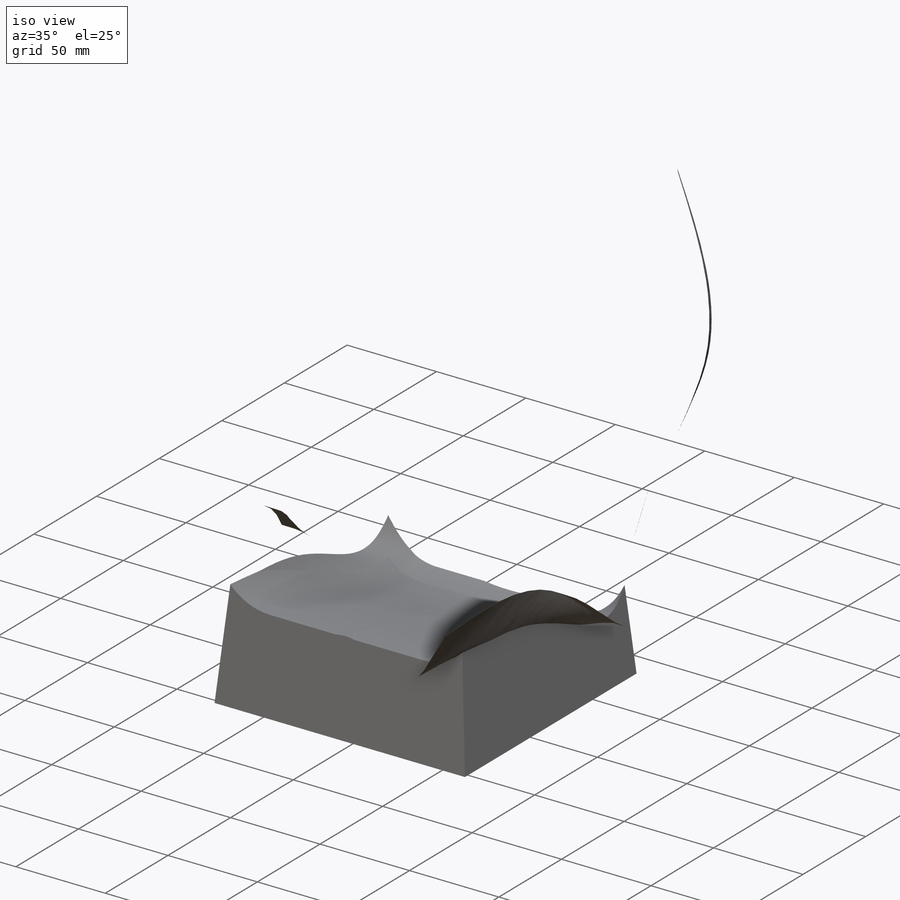
[diagram: iso view]
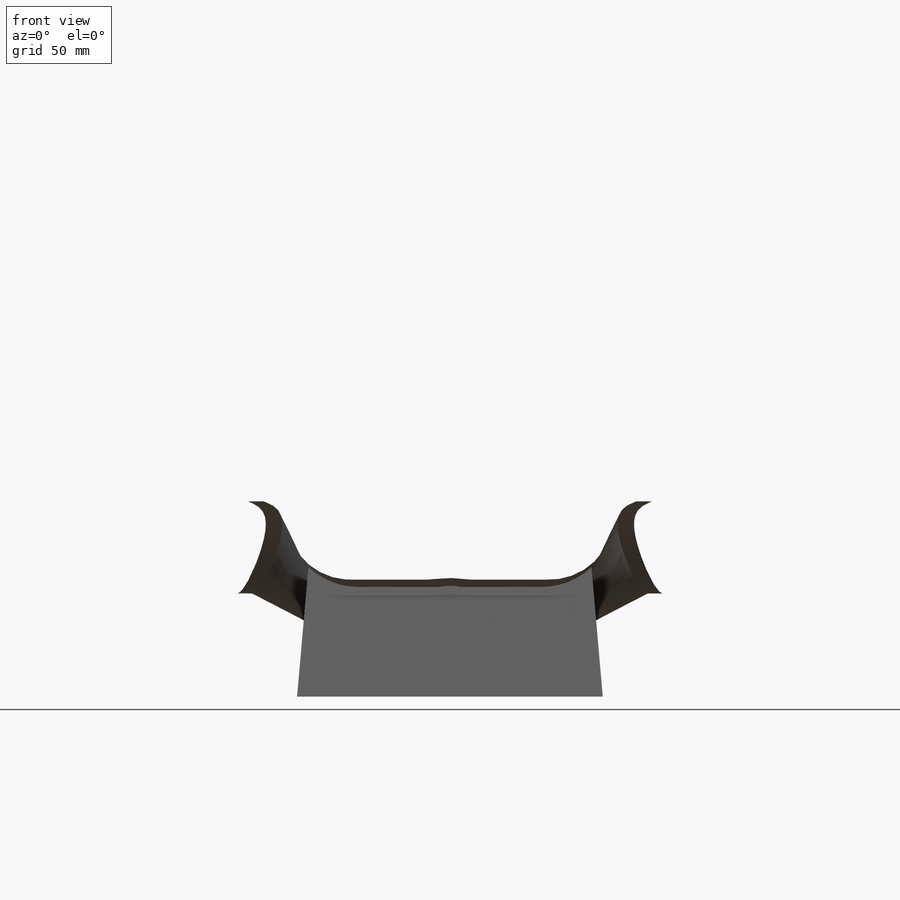
[diagram: front view]
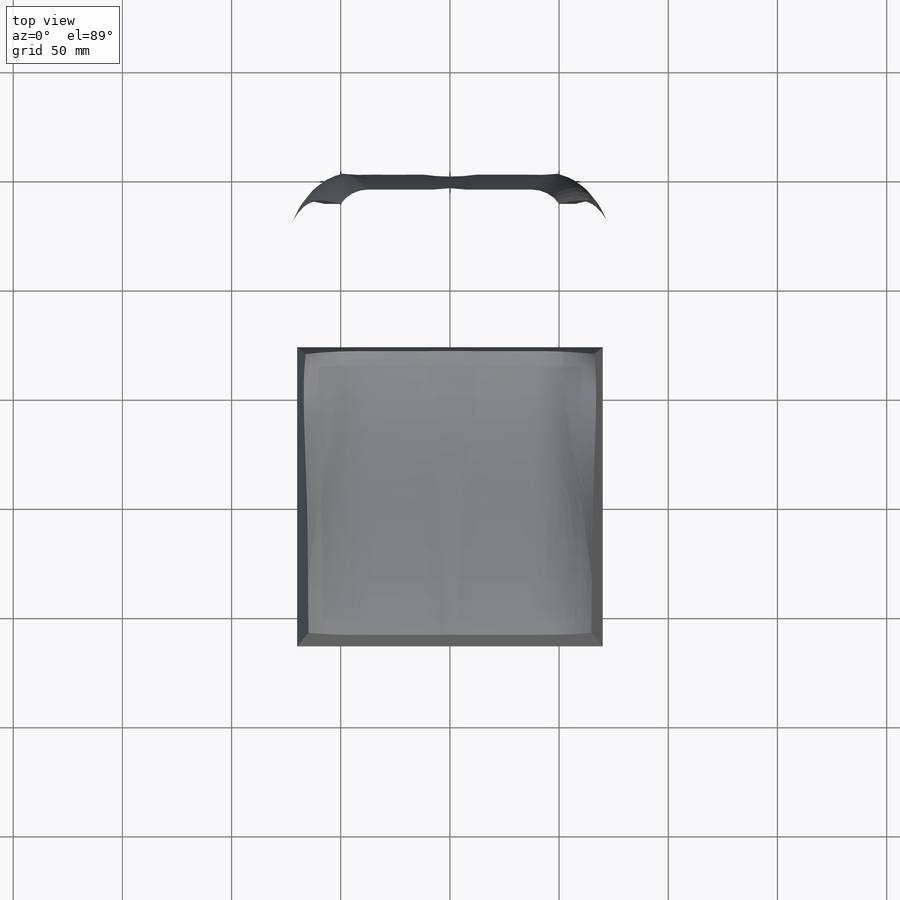
[diagram: top view]
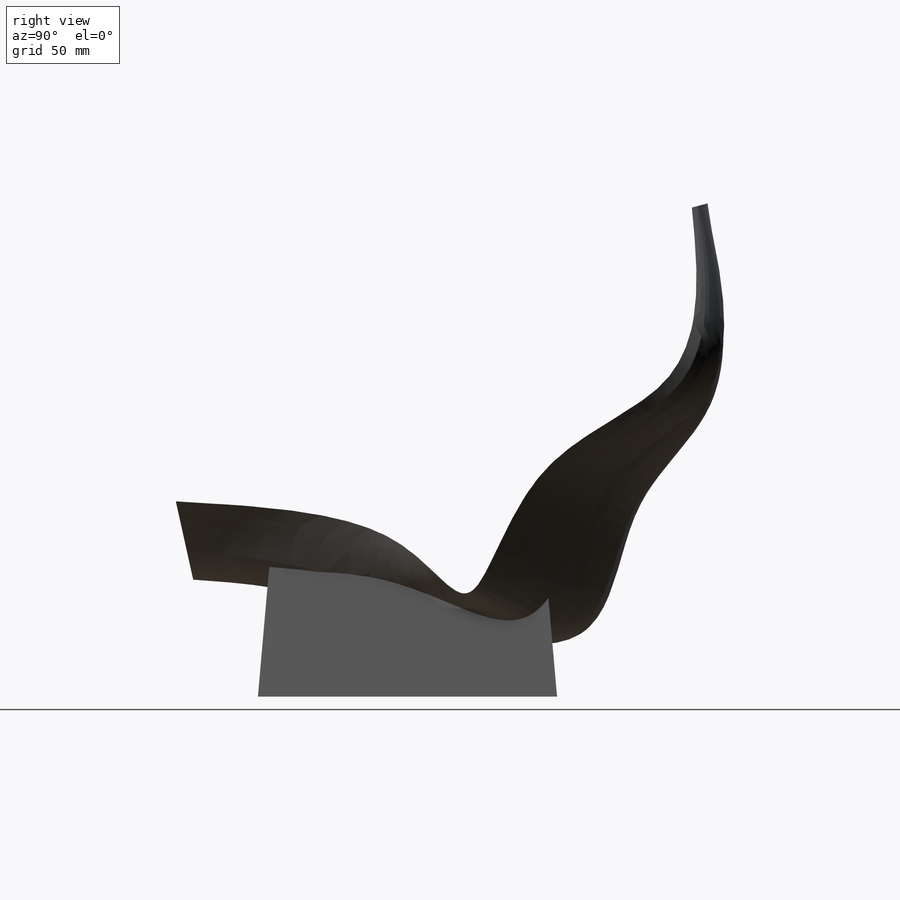
[diagram: right view]
SOLIDWORKS PART (.sldprt)
format: sldprt  version: not decoded by parser v0  size: 476,160 bytes
history: native  units: mm
features: sketch x8, plane x8, material x1, extrude x1 (+13 scaffold rows collapsed)
feature tree (31):
  scaffold x13  (default folders/planes/origin — collapsed)
  material  "Material <not specified>"
  sketch  "Sketch3"  dims[c1.D3=~32.242703mm c1.D7=~94.867357mm c1.D8=~129.961161mm c1.D13=~59.296802mm c1.D1=85.0mm c1.D2=~100.928323mm c2.D2=16.0deg c3.D2=~115.758296mm c4.D2=25.0deg c4.D3=~45.319178mm c4.D4=120.0mm c5.D3=~31.875128mm c5.D4=~50.028566mm c5.D5=~40.118026mm c5.D6=~31.612439mm c5.D9=~37.84421mm c5.D10=~77.934265mm c5.D11=~77.962236mm c5.D12=~167.560111mm c5.D13=~285.344924mm c5.D14=~293.092953mm c6.D9=~37.84421mm c6.D10=~77.934265mm c6.D11=~167.560111mm c6.D12=~87.645466mm c6.D13=~142.569426mm c6.D14=~176.205849mm c7.D12=~87.645466mm c7.D14=~102.556429mm c7.D15=~116.030228mm c7.D16=~143.097938mm c7.D17=~180.942148mm c8.D14=~102.556429mm c8.D15=~116.030228mm c8.D16=~180.942148mm c8.D9=~134.424098mm c9.D9=~38.659808deg c10.D9=~30.275368mm c11.D9=25.0deg c12.D9=~41.756465mm c13.D9=30.0deg c13.D12=~37.84421mm c13.D17=~77.962236mm c14.D12=~37.84421mm c14.D1=40.0deg c14.D3=90.0deg c15.D3=60.0mm c15.D4=90.0deg c15.D5=25.0deg c15.D6=30.0deg]
  plane  "Plane1"
  plane  "Plane2"
  plane  "Plane3"  Offset=60mm
  plane  "Plane4"  Offset=60mm
  plane  "Plane5"
  plane  "Plane7"
  plane  "Plane8"
  sketch  "Sketch4"  dims[c1.D2=17.0mm c1.D1=37.5mm c2.D2=~14.931446mm c2.D1=37.0mm c2.D3=10.0mm c2.D4=~52.488611mm c2.D5=~328.711483mm c2.D6=~338.704135mm c2.D7=~345.711483mm c3.D5=~328.711483mm c3.D3=~7.390358mm c3.D4=~7.678713mm c4.D5=37.5mm c4.D6=50.0mm c4.D7=57.5mm c4.D8=~7.390358mm c4.D3=~7.390358mm c5.D8=~291.211483mm c5.D9=~313.044593mm c5.D10=~321.211483mm c5.D11=~327.916896mm c5.D12=~327.976039mm c6.D8=~291.211483mm]
  sketch  "Sketch5"  dims[c1.D1=~57.716982mm c1.D2=~35.483734mm c1.D3=~12.657573mm c1.D4=~13.482389mm c1.D5=~41.455451mm c1.D6=82.5mm c1.D7=90.0mm c1.D8=~12.657573mm c2.D3=~12.657573mm c2.D8=~168.992165mm c2.D9=~204.069752mm c2.D10=~222.983758mm c2.D11=~223.175524mm c2.D12=~279.295709mm c3.D8=~168.992165mm c3.D5=~41.455451mm c3.D6=75.0mm c3.D7=82.5mm c4.D8=~187.500024mm c4.D9=~199.069752mm c4.D10=~222.983758mm c4.D11=~223.175524mm c4.D12=~279.295709mm c5.D8=~187.500024mm]
  sketch  "Sketch6"  dims[c1.D1=62.5mm c1.D2=~30.463666mm c1.D3=~8.46632mm c1.D4=~37.710622mm c1.D5=65.0mm c1.D6=~77.971001mm c1.D7=~85.246282mm c1.D8=~8.46632mm c2.D3=~8.46632mm c2.D6=87.5mm c2.D7=95.0mm c2.D8=~166.569752mm]
  sketch  "Sketch7"  dims[c1.D1=57.5mm c1.D2=~17.216498mm c2.D1=57.5mm c2.D3=~14.142036mm c2.D4=~14.279887mm c2.D5=~39.672149mm c2.D6=~52.500036mm c2.D7=~92.391795mm c2.D8=~99.638826mm c2.D9=~14.142036mm c3.D3=~14.142036mm c3.D4=~39.672149mm c3.D5=~52.500036mm c3.D6=~92.391795mm c3.D7=~99.638826mm c3.D8=~14.142036mm c4.D3=~14.142036mm c4.D6=~92.391795mm c4.D7=~99.638826mm]
  sketch  "Sketch9"  dims[c1.D1=37.5mm c1.D2=~29.252379mm c1.D3=~4.971466mm c1.D4=~40.191187mm c1.D5=62.5mm c1.D6=72.5mm c1.D7=80.0mm c1.D8=~4.971466mm c2.D3=~4.971466mm c2.D8=~97.316439mm c2.D9=77.5mm c2.D10=85.0mm c2.D11=~107.316439mm]
  sketch  "Sketch10"  dims[c1.D1=65.0mm c1.D2=~29.031695mm c1.D3=~9.926782mm c1.D4=~45.624374mm c1.D5=70.0mm c1.D6=~85.176438mm c1.D7=~92.472117mm c1.D8=~9.926782mm c2.D3=~9.926782mm]
  plane  "Plane9"  Offset=30mm
  sketch  "Sketch12"  dims[c1.D1=137.0mm c1.D2=67.0mm c1.D3=~87.181818mm c2.D2=140.0mm]
  extrude  "Boss-Extrude5"  [1 undecoded]
decode coverage: 8 of 9 modeling features carry decoded parameters
note: ~ marks probable driven/reference dimensions
note: 1 parameter value undecoded
note: suppression state not decoded; provenance and decode notes live in map.json
